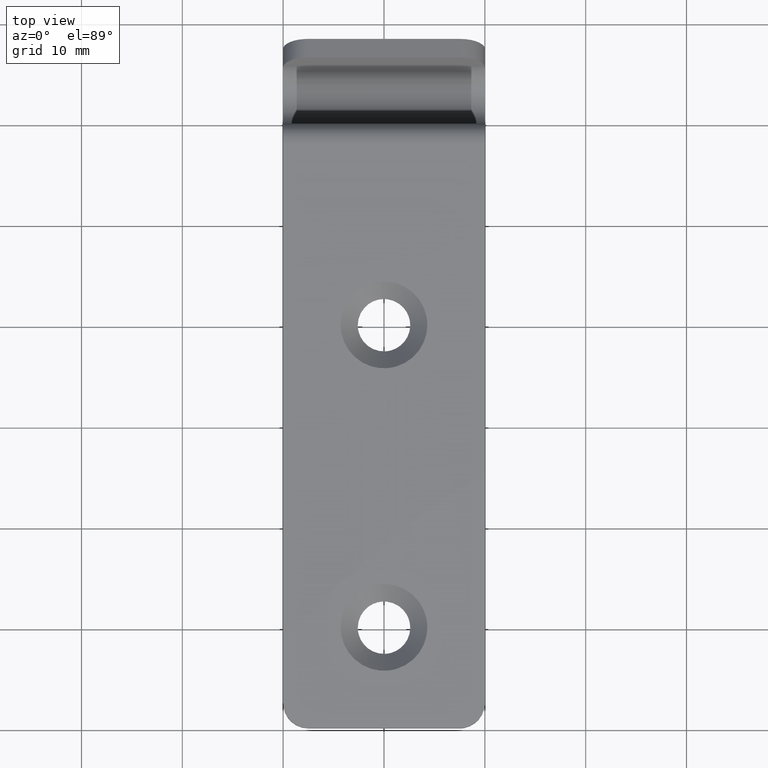
[diagram: clean part render]
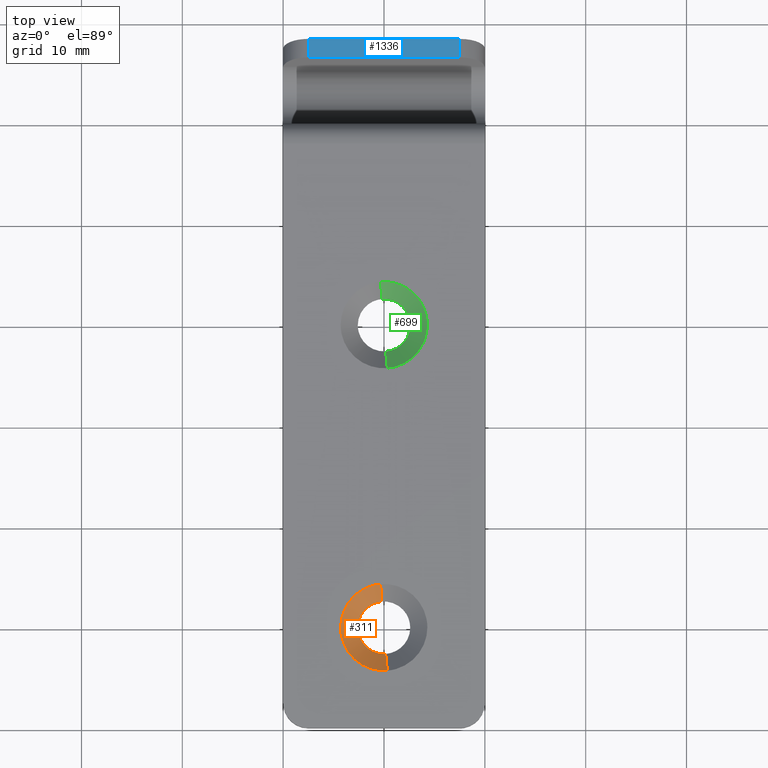
[diagram: same view with three faces highlighted in distinct colors, each labeled with its STEP entity id]
A machine part, top view with three faces highlighted in distinct colors.
Their STEP definitions:

[orange] entity #311 — the highlighted face is a freeform B-spline surface patch.
#116=CARTESIAN_POINT('',(0.158725742557354,7.404849495954355,-1.700000186067361));
#117=VERTEX_POINT('',#116);
#161=CARTESIAN_POINT('',(-0.203992219694042,12.591983392216880,-1.700001782457548));
#162=VERTEX_POINT('',#161);
#178=CARTESIAN_POINT('',(-2.600000000000000,10.000000000000201,-1.700000000000110));
#179=VERTEX_POINT('',#178);
#180=CARTESIAN_POINT('',(-2.600000000000000,10.000000000000201,-1.700000000000110));
#181=CARTESIAN_POINT('',(-2.599999930075430,12.403415589074736,-1.700000891228828));
#182=CARTESIAN_POINT('',(-0.203992219694042,12.591983392216880,-1.700001782457548));
#190=(BOUNDED_CURVE()B_SPLINE_CURVE(2,(#180,#181,#182),.UNSPECIFIED.,.F.,.U.)B_SPLINE_CURVE_WITH_KNOTS((3,3),(0.0,0.236331385905653),.UNSPECIFIED.)CURVE()GEOMETRIC_REPRESENTATION_ITEM()RATIONAL_B_SPLINE_CURVE((1.0,0.723120558701796,0.969723534129892))REPRESENTATION_ITEM(''));
#191=EDGE_CURVE('',#179,#162,#190,.T.);
#193=CARTESIAN_POINT('',(0.158725742557354,7.404849495954355,-1.700000186067361));
#194=CARTESIAN_POINT('',(0.079436953814472,7.400000000000200,-1.700000000000110));
#195=CARTESIAN_POINT('',(0.0,7.400000000000200,-1.700000000000110));
#196=CARTESIAN_POINT('',(-2.600000000000001,7.400000000000199,-1.700000000000111));
#197=CARTESIAN_POINT('',(-2.600000000000000,10.000000000000201,-1.700000000000110));
#205=(BOUNDED_CURVE()B_SPLINE_CURVE(2,(#193,#194,#195,#196,#197),.UNSPECIFIED.,.F.,.U.)B_SPLINE_CURVE_WITH_KNOTS((3,2,3),(0.739332992842034,0.750000000000000,1.0),.UNSPECIFIED.)CURVE()GEOMETRIC_REPRESENTATION_ITEM()RATIONAL_B_SPLINE_CURVE((0.976072107254977,0.987502823753589,1.0,0.707106781186548,1.0))REPRESENTATION_ITEM(''));
#206=EDGE_CURVE('',#117,#179,#205,.T.);
#245=CARTESIAN_POINT('',(-0.200659137323964,12.549616081022659,-1.742500000000113));
#246=CARTESIAN_POINT('',(-2.750275218346430,12.348956943698703,-1.742500000000113));
#247=CARTESIAN_POINT('',(-2.549616081022466,9.799340862676235,-1.742500000000113));
#248=CARTESIAN_POINT('',(-2.348956943698502,7.249724781653769,-1.742500000000113));
#249=CARTESIAN_POINT('',(0.200659137323964,7.450383918977733,-1.742500000000113));
#250=CARTESIAN_POINT('',(-0.340791985987388,14.330172746403500,0.043562500000003));
#251=CARTESIAN_POINT('',(-4.670964732390691,13.989380760416113,0.043562500000003));
#252=CARTESIAN_POINT('',(-4.330172746403303,9.659208014012810,0.043562500000003));
#253=CARTESIAN_POINT('',(-3.989380760415914,5.329035267609507,0.043562500000003));
#254=CARTESIAN_POINT('',(0.340791985987388,5.669827253596896,0.043562500000003));
#262=(BOUNDED_SURFACE()B_SPLINE_SURFACE(2,1,((#245,#250),(#246,#251),(#247,#252),(#248,#253),(#249,#254)),.UNSPECIFIED.,.F.,.F.,.U.)B_SPLINE_SURFACE_WITH_KNOTS((3,2,3),(2,2),(0.0,7.196649986060920,14.393299972121840),(0.0,2.525873810746158),.UNSPECIFIED.)GEOMETRIC_REPRESENTATION_ITEM()RATIONAL_B_SPLINE_SURFACE(((1.0,1.0),(0.707106781186548,0.707106781186548),(1.0,1.0),(0.707106781186548,0.707106781186548),(1.0,1.0)))REPRESENTATION_ITEM('')SURFACE());
#263=ORIENTED_EDGE('',*,*,#191,.T.);
#264=CARTESIAN_POINT('',(-0.337374111841993,14.286744535063580,2.744801E-011));
#265=VERTEX_POINT('',#264);
#266=CARTESIAN_POINT('',(-0.203992219694042,12.591983392216880,-1.700001782457548));
#267=CARTESIAN_POINT('',(-0.337374111841993,14.286744535063580,2.744801E-011));
#268=QUASI_UNIFORM_CURVE('',1,(#266,#267),.UNSPECIFIED.,.F.,.U.);
#269=EDGE_CURVE('',#162,#265,#268,.T.);
#270=ORIENTED_EDGE('',*,*,#269,.T.);
#271=CARTESIAN_POINT('',(-4.300000000000096,10.000000000000201,-6.661338E-015));
#272=VERTEX_POINT('',#271);
#273=CARTESIAN_POINT('',(-4.300000000000096,10.000000000000201,-6.661338E-015));
#274=CARTESIAN_POINT('',(-4.300000000000097,13.974879113739744,-6.661338E-015));
#275=CARTESIAN_POINT('',(-0.337374111841993,14.286744535063580,2.744801E-011));
#283=(BOUNDED_CURVE()B_SPLINE_CURVE(2,(#273,#274,#275),.UNSPECIFIED.,.F.,.U.)B_SPLINE_CURVE_WITH_KNOTS((3,3),(0.0,0.236331300615964),.UNSPECIFIED.)CURVE()GEOMETRIC_REPRESENTATION_ITEM()RATIONAL_B_SPLINE_CURVE((1.0,0.723120658624883,0.969723356136748))REPRESENTATION_ITEM(''));
#284=EDGE_CURVE('',#272,#265,#283,.T.);
#285=ORIENTED_EDGE('',*,*,#284,.F.);
#286=CARTESIAN_POINT('',(0.337374111841994,5.713255464936820,2.744751E-011));
#287=VERTEX_POINT('',#286);
#288=CARTESIAN_POINT('',(0.337374111841994,5.713255464936820,2.744751E-011));
#289=CARTESIAN_POINT('',(0.168947460344056,5.700000000000105,-6.661338E-015));
#290=CARTESIAN_POINT('',(0.0,5.700000000000104,-6.661338E-015));
#291=CARTESIAN_POINT('',(-4.300000000000096,5.700000000000104,-6.661338E-015));
#292=CARTESIAN_POINT('',(-4.300000000000096,10.000000000000201,-6.661338E-015));
#300=(BOUNDED_CURVE()B_SPLINE_CURVE(2,(#288,#289,#290,#291,#292),.UNSPECIFIED.,.F.,.U.)B_SPLINE_CURVE_WITH_KNOTS((3,2,3),(0.736331300615964,0.750000000000000,1.0),.UNSPECIFIED.)CURVE()GEOMETRIC_REPRESENTATION_ITEM()RATIONAL_B_SPLINE_CURVE((0.969723356136748,0.983986122561664,1.0,0.707106781186548,1.0))REPRESENTATION_ITEM(''));
#301=EDGE_CURVE('',#287,#272,#300,.T.);
#302=ORIENTED_EDGE('',*,*,#301,.F.);
#303=CARTESIAN_POINT('',(0.158725742557354,7.404849495954355,-1.700000186067361));
#304=CARTESIAN_POINT('',(0.337374111841994,5.713255464936820,2.744751E-011));
#305=QUASI_UNIFORM_CURVE('',1,(#303,#304),.UNSPECIFIED.,.F.,.U.);
#306=EDGE_CURVE('',#117,#287,#305,.T.);
#307=ORIENTED_EDGE('',*,*,#306,.F.);
#308=ORIENTED_EDGE('',*,*,#206,.T.);
#309=EDGE_LOOP('',(#263,#270,#285,#302,#307,#308));
#310=FACE_OUTER_BOUND('',#309,.T.);
#311=ADVANCED_FACE('',(#310),#262,.F.);

[blue] entity #1336 — the highlighted face is a freeform B-spline surface patch.
#836=CARTESIAN_POINT('',(7.500000000000000,68.500299999999996,-7.756000000000110));
#837=VERTEX_POINT('',#836);
#853=CARTESIAN_POINT('',(7.500000000000000,66.648799999999994,-7.000000000000110));
#854=VERTEX_POINT('',#853);
#855=CARTESIAN_POINT('',(7.500000000000000,66.648799999999994,-7.000000000000110));
#856=CARTESIAN_POINT('',(7.500000000000000,68.500299999999996,-7.756000000000110));
#857=QUASI_UNIFORM_CURVE('',1,(#855,#856),.UNSPECIFIED.,.F.,.U.);
#858=EDGE_CURVE('',#854,#837,#857,.T.);
#942=CARTESIAN_POINT('',(-7.500000000000000,66.648799999999994,-7.000000000000110));
#943=VERTEX_POINT('',#942);
#957=CARTESIAN_POINT('',(-7.500000000000000,68.500299999999996,-7.756000000000110));
#958=VERTEX_POINT('',#957);
#959=CARTESIAN_POINT('',(-7.500000000000000,68.500299999999996,-7.756000000000110));
#960=CARTESIAN_POINT('',(-7.500000000000000,66.648799999999994,-7.000000000000110));
#961=QUASI_UNIFORM_CURVE('',1,(#959,#960),.UNSPECIFIED.,.F.,.U.);
#962=EDGE_CURVE('',#958,#943,#961,.T.);
#1157=CARTESIAN_POINT('',(7.500000000000000,68.500299999999996,-7.756000000000110));
#1158=CARTESIAN_POINT('',(-7.500000000000000,68.500299999999996,-7.756000000000110));
#1159=QUASI_UNIFORM_CURVE('',1,(#1157,#1158),.UNSPECIFIED.,.F.,.U.);
#1160=EDGE_CURVE('',#837,#958,#1159,.T.);
#1314=CARTESIAN_POINT('',(7.500000000000000,66.648799999999994,-7.000000000000110));
#1315=CARTESIAN_POINT('',(-7.500000000000000,66.648799999999994,-7.000000000000110));
#1316=QUASI_UNIFORM_CURVE('',1,(#1314,#1315),.UNSPECIFIED.,.F.,.U.);
#1317=EDGE_CURVE('',#854,#943,#1316,.T.);
#1325=CARTESIAN_POINT('',(-8.249249970927089,66.556321021493304,-6.962239207263910));
#1326=CARTESIAN_POINT('',(-8.249249970927089,68.592780087604595,-7.793761245600479));
#1327=CARTESIAN_POINT('',(8.249250373258443,66.556321021493304,-6.962239207263910));
#1328=CARTESIAN_POINT('',(8.249250373258443,68.592780087604595,-7.793761245600479));
#1329=B_SPLINE_SURFACE_WITH_KNOTS('',1,1,((#1325,#1327),(#1326,#1328)),.UNSPECIFIED.,.F.,.F.,.U.,(2,2),(2,2),(0.0,2.199680528664623),(0.0,16.498500344185530),.UNSPECIFIED.);
#1330=ORIENTED_EDGE('',*,*,#1160,.T.);
#1331=ORIENTED_EDGE('',*,*,#962,.T.);
#1332=ORIENTED_EDGE('',*,*,#1317,.F.);
#1333=ORIENTED_EDGE('',*,*,#858,.T.);
#1334=EDGE_LOOP('',(#1330,#1331,#1332,#1333));
#1335=FACE_OUTER_BOUND('',#1334,.T.);
#1336=ADVANCED_FACE('',(#1335),#1329,.F.);

[green] entity #699 — the highlighted face is a freeform B-spline surface patch.
#390=CARTESIAN_POINT('',(0.296661728329418,42.583019902932342,-1.700000000000110));
#391=VERTEX_POINT('',#390);
#392=CARTESIAN_POINT('',(2.600000000000000,40.0,-1.700000000000110));
#393=VERTEX_POINT('',#392);
#394=CARTESIAN_POINT('',(0.296661728329418,42.583019902932335,-1.700000000000110));
#395=CARTESIAN_POINT('',(2.600000000000001,42.318479814861092,-1.700000000000110));
#396=CARTESIAN_POINT('',(2.600000000000000,40.0,-1.700000000000110));
#404=(BOUNDED_CURVE()B_SPLINE_CURVE(2,(#394,#395,#396),.UNSPECIFIED.,.F.,.U.)B_SPLINE_CURVE_WITH_KNOTS((3,3),(0.269767755877196,0.500000000000000),.UNSPECIFIED.)CURVE()GEOMETRIC_REPRESENTATION_ITEM()RATIONAL_B_SPLINE_CURVE((0.957343736459506,0.730266147776910,1.0))REPRESENTATION_ITEM(''));
#405=EDGE_CURVE('',#391,#393,#404,.T.);
#444=CARTESIAN_POINT('',(0.158725742557354,37.404849495954160,-1.700000186067361));
#445=VERTEX_POINT('',#444);
#451=CARTESIAN_POINT('',(2.600000000000000,40.0,-1.700000000000110));
#452=CARTESIAN_POINT('',(2.600000000000001,37.554163791481351,-1.700000000000109));
#453=CARTESIAN_POINT('',(0.158725742557354,37.404849495954160,-1.700000186067361));
#461=(BOUNDED_CURVE()B_SPLINE_CURVE(2,(#451,#452,#453),.UNSPECIFIED.,.F.,.U.)B_SPLINE_CURVE_WITH_KNOTS((3,3),(0.500000000000000,0.739332992842034),.UNSPECIFIED.)CURVE()GEOMETRIC_REPRESENTATION_ITEM()RATIONAL_B_SPLINE_CURVE((1.0,0.719603957432958,0.976072107254977))REPRESENTATION_ITEM(''));
#462=EDGE_CURVE('',#393,#445,#461,.T.);
#489=CARTESIAN_POINT('',(-0.203992219694041,42.591983392216683,-1.700001782457548));
#490=VERTEX_POINT('',#489);
#491=CARTESIAN_POINT('',(-0.203992219694042,42.591983392216683,-1.700001782457548));
#492=CARTESIAN_POINT('',(-0.102153519103097,42.599998583866366,-1.700001420512496));
#493=CARTESIAN_POINT('',(0.000000082923891,42.599998946322401,-1.700001056935859));
#494=CARTESIAN_POINT('',(0.148816852436745,42.599999474346234,-1.700000527279543));
#495=CARTESIAN_POINT('',(0.296661728329418,42.583019902932335,-1.700000000000110));
#503=(BOUNDED_CURVE()B_SPLINE_CURVE(2,(#491,#492,#493,#494,#495),.UNSPECIFIED.,.F.,.U.)B_SPLINE_CURVE_WITH_KNOTS((3,2,3),(0.236331385905653,0.250000000000000,0.269767755877196),.UNSPECIFIED.)CURVE()GEOMETRIC_REPRESENTATION_ITEM()RATIONAL_B_SPLINE_CURVE((0.969723534129892,0.983986222484751,1.0,0.976840633409638,0.957343736459506))REPRESENTATION_ITEM(''));
#504=EDGE_CURVE('',#490,#391,#503,.T.);
#592=CARTESIAN_POINT('',(-0.337374111841993,44.286744535063377,2.744623E-011));
#593=VERTEX_POINT('',#592);
#594=CARTESIAN_POINT('',(-0.203992219694041,42.591983392216683,-1.700001782457548));
#595=CARTESIAN_POINT('',(-0.337374111841993,44.286744535063377,2.744623E-011));
#596=QUASI_UNIFORM_CURVE('',1,(#594,#595),.UNSPECIFIED.,.F.,.U.);
#597=EDGE_CURVE('',#490,#593,#596,.T.);
#614=CARTESIAN_POINT('',(0.337374111841994,35.713255464936623,2.744642E-011));
#615=VERTEX_POINT('',#614);
#631=CARTESIAN_POINT('',(0.158725742557354,37.404849495954160,-1.700000186067361));
#632=CARTESIAN_POINT('',(0.337374111841994,35.713255464936623,2.744642E-011));
#633=QUASI_UNIFORM_CURVE('',1,(#631,#632),.UNSPECIFIED.,.F.,.U.);
#634=EDGE_CURVE('',#445,#615,#633,.T.);
#640=CARTESIAN_POINT('',(0.120925235596655,37.444108724819813,-1.742500000000113));
#641=CARTESIAN_POINT('',(0.160532291674015,37.447225867735384,-1.742500000000112));
#642=CARTESIAN_POINT('',(2.750275218346425,37.651043056301503,-1.742500000000113));
#643=CARTESIAN_POINT('',(2.549616081022461,40.200659137323967,-1.742500000000113));
#644=CARTESIAN_POINT('',(2.348956943698497,42.750275218346431,-1.742500000000113));
#645=CARTESIAN_POINT('',(-0.218745596234164,42.548192645835805,-1.742500000000112));
#646=CARTESIAN_POINT('',(-0.236726077960190,42.546777551234449,-1.742500000000113));
#647=CARTESIAN_POINT('',(0.205374904649584,35.659169698162202,0.043562500000003));
#648=CARTESIAN_POINT('',(0.272642049718216,35.664463737292301,0.043562500000003));
#649=CARTESIAN_POINT('',(4.670964732390693,36.010619239584081,0.043562500000003));
#650=CARTESIAN_POINT('',(4.330172746403304,40.340791985987387,0.043562500000003));
#651=CARTESIAN_POINT('',(3.989380760415914,44.670964732390694,0.043562500000003));
#652=CARTESIAN_POINT('',(-0.371509352431235,44.327755237235003,0.043562500000003));
#653=CARTESIAN_POINT('',(-0.402046731182791,44.325351893405319,0.043562500000003));
#661=(BOUNDED_SURFACE()B_SPLINE_SURFACE(2,1,((#640,#647),(#641,#648),(#642,#649),(#643,#650),(#644,#651),(#645,#652),(#646,#653)),.UNSPECIFIED.,.F.,.F.,.U.)B_SPLINE_SURFACE_WITH_KNOTS((3,1,2,1,3),(2,2),(0.0,0.161230079520606,7.357880065581536,14.554530051642461,14.626940647554440),(0.0,2.526491307999144),.UNSPECIFIED.)GEOMETRIC_REPRESENTATION_ITEM()RATIONAL_B_SPLINE_SURFACE(((1.013123660884385,1.013123660884385),(1.006561830442193,1.006561830442193),(0.707106781186548,0.707106781186548),(1.0,1.0),(0.707106781186548,0.707106781186548),(1.002947006253457,1.002947006253457),(1.005894012506913,1.005894012506913)))REPRESENTATION_ITEM('')SURFACE());
#662=ORIENTED_EDGE('',*,*,#504,.T.);
#663=ORIENTED_EDGE('',*,*,#405,.T.);
#664=ORIENTED_EDGE('',*,*,#462,.T.);
#665=ORIENTED_EDGE('',*,*,#634,.T.);
#666=CARTESIAN_POINT('',(4.300000000000096,40.0,0.0));
#667=VERTEX_POINT('',#666);
#668=CARTESIAN_POINT('',(4.300000000000096,40.0,-6.661338E-015));
#669=CARTESIAN_POINT('',(4.300000000000095,36.025120886260446,-6.661338E-015));
#670=CARTESIAN_POINT('',(0.337374111841994,35.713255464936623,2.744642E-011));
#678=(BOUNDED_CURVE()B_SPLINE_CURVE(2,(#668,#669,#670),.UNSPECIFIED.,.F.,.U.)B_SPLINE_CURVE_WITH_KNOTS((3,3),(0.500000000000000,0.736331300615964),.UNSPECIFIED.)CURVE()GEOMETRIC_REPRESENTATION_ITEM()RATIONAL_B_SPLINE_CURVE((1.0,0.723120658624883,0.969723356136749))REPRESENTATION_ITEM(''));
#679=EDGE_CURVE('',#667,#615,#678,.T.);
#680=ORIENTED_EDGE('',*,*,#679,.F.);
#681=CARTESIAN_POINT('',(-0.337374111841993,44.286744535063377,2.744623E-011));
#682=CARTESIAN_POINT('',(-0.168947460344055,44.300000000000104,-6.661338E-015));
#683=CARTESIAN_POINT('',(0.0,44.300000000000097,-6.661338E-015));
#684=CARTESIAN_POINT('',(4.300000000000096,44.300000000000104,-6.661338E-015));
#685=CARTESIAN_POINT('',(4.300000000000096,40.0,-6.661338E-015));
#693=(BOUNDED_CURVE()B_SPLINE_CURVE(2,(#681,#682,#683,#684,#685),.UNSPECIFIED.,.F.,.U.)B_SPLINE_CURVE_WITH_KNOTS((3,2,3),(0.236331300615964,0.250000000000000,0.500000000000000),.UNSPECIFIED.)CURVE()GEOMETRIC_REPRESENTATION_ITEM()RATIONAL_B_SPLINE_CURVE((0.969723356136748,0.983986122561664,1.0,0.707106781186548,1.0))REPRESENTATION_ITEM(''));
#694=EDGE_CURVE('',#593,#667,#693,.T.);
#695=ORIENTED_EDGE('',*,*,#694,.F.);
#696=ORIENTED_EDGE('',*,*,#597,.F.);
#697=EDGE_LOOP('',(#662,#663,#664,#665,#680,#695,#696));
#698=FACE_OUTER_BOUND('',#697,.T.);
#699=ADVANCED_FACE('',(#698),#661,.F.);